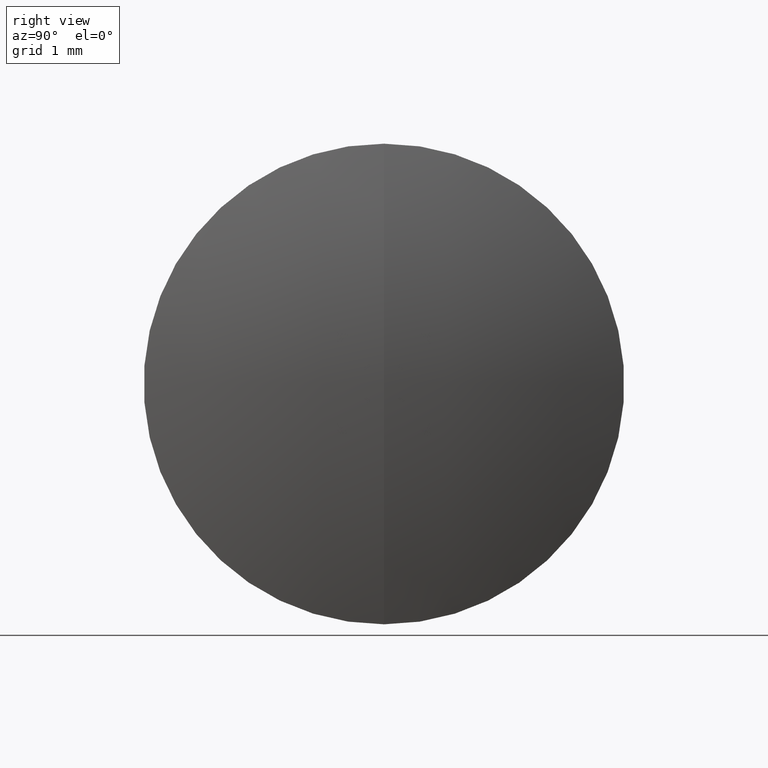
[diagram: clean part render]
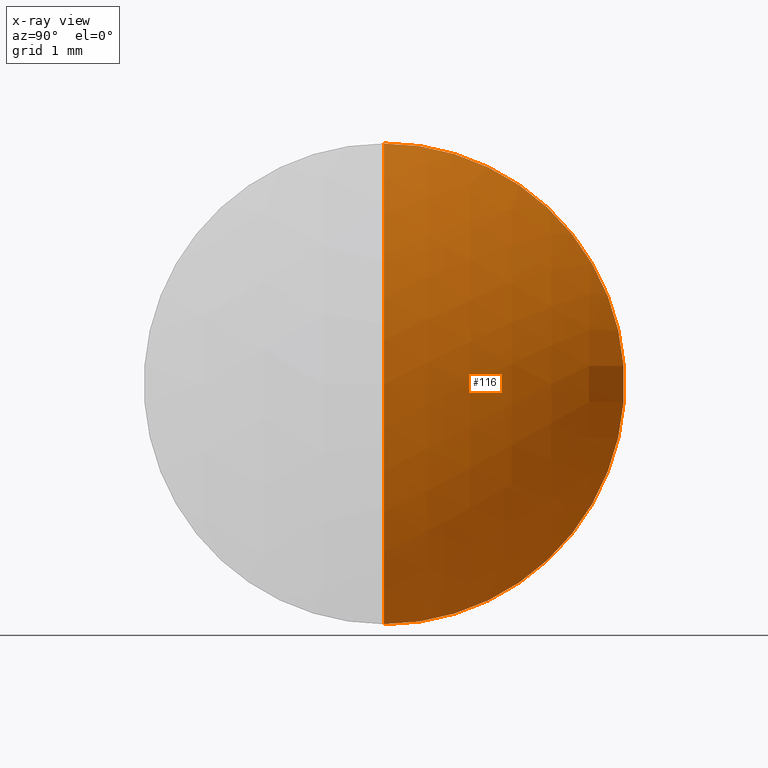
[diagram: x-ray — body ghosted, one internal face saturated and labeled with its STEP entity id]
A machine part, right view, then the same camera in x-ray: the body is ghosted and one INTERNAL B-rep face — a face not visible from any outside direction — is saturated and labeled: STEP entity #116.
In plain terms, the highlighted spherical surface has radius 4.89 mm.
Its self-contained STEP definition (entity closure, byte-faithful):
#32 = CARTESIAN_POINT ( 'NONE',  ( -1.342040515916890000, 0.0000000000000000000, 7.023840951586055500E-017 ) ) ;
#42 = DIRECTION ( 'NONE',  ( -0.0000000000000000000, 1.000000000000000000, 1.224646799147353200E-016 ) ) ;
#46 = DIRECTION ( 'NONE',  ( 0.0000000000000000000, -1.224646799147353200E-016, 1.000000000000000000 ) ) ;
#50 = DIRECTION ( 'NONE',  ( 0.0000000000000000000, 1.000000000000000000, 0.0000000000000000000 ) ) ;
#51 = CIRCLE ( 'NONE', #283, 3.174999999999999800 ) ;
#53 = EDGE_CURVE ( 'NONE', #302, #335, #153, .T. ) ;
#57 = AXIS2_PLACEMENT_3D ( 'NONE', #121, #169, #65 ) ;
#61 = EDGE_LOOP ( 'NONE', ( #232, #157, #106 ) ) ;
#65 = DIRECTION ( 'NONE',  ( 0.0000000000000000000, 0.0000000000000000000, -1.000000000000000000 ) ) ;
#99 = FACE_OUTER_BOUND ( 'NONE', #61, .T. ) ;
#106 = ORIENTED_EDGE ( 'NONE', *, *, #275, .F. ) ;
#109 = CARTESIAN_POINT ( 'NONE',  ( 2.377028588039097600, 0.0000000000000000000, 0.0000000000000000000 ) ) ;
#116 = ADVANCED_FACE ( 'NONE', ( #99 ), #304, .T. ) ;
#121 = CARTESIAN_POINT ( 'NONE',  ( -1.342040515916890000, 0.0000000000000000000, 7.023840951586055500E-017 ) ) ;
#153 = CIRCLE ( 'NONE', #57, 4.889999999999999700 ) ;
#157 = ORIENTED_EDGE ( 'NONE', *, *, #192, .T. ) ;
#158 = AXIS2_PLACEMENT_3D ( 'NONE', #273, #42, #46 ) ;
#169 = DIRECTION ( 'NONE',  ( 0.0000000000000000000, -1.000000000000000000, 0.0000000000000000000 ) ) ;
#192 = EDGE_CURVE ( 'NONE', #302, #312, #217, .T. ) ;
#217 = CIRCLE ( 'NONE', #158, 4.889999999999999700 ) ;
#227 = DIRECTION ( 'NONE',  ( -1.000000000000000000, -0.0000000000000000000, -0.0000000000000000000 ) ) ;
#229 = DIRECTION ( 'NONE',  ( 0.0000000000000000000, 0.0000000000000000000, 1.000000000000000000 ) ) ;
#232 = ORIENTED_EDGE ( 'NONE', *, *, #53, .F. ) ;
#253 = CARTESIAN_POINT ( 'NONE',  ( 2.377028588039097600, 3.888253587292846100E-016, -3.174999999999999800 ) ) ;
#264 = CARTESIAN_POINT ( 'NONE',  ( 2.377028588039097600, 0.0000000000000000000, 3.174999999999999800 ) ) ;
#273 = CARTESIAN_POINT ( 'NONE',  ( -1.342040515916890000, 0.0000000000000000000, 7.023840951586055500E-017 ) ) ;
#275 = EDGE_CURVE ( 'NONE', #335, #312, #51, .T. ) ;
#283 = AXIS2_PLACEMENT_3D ( 'NONE', #109, #227, #285 ) ;
#285 = DIRECTION ( 'NONE',  ( 0.0000000000000000000, 0.0000000000000000000, 1.000000000000000000 ) ) ;
#298 = CARTESIAN_POINT ( 'NONE',  ( 3.547959484083109200, 0.0000000000000000000, 3.696645519073884000E-016 ) ) ;
#302 = VERTEX_POINT ( 'NONE', #298 ) ;
#304 = SPHERICAL_SURFACE ( 'NONE', #318, 4.889999999999999700 ) ;
#312 = VERTEX_POINT ( 'NONE', #253 ) ;
#318 = AXIS2_PLACEMENT_3D ( 'NONE', #32, #50, #229 ) ;
#335 = VERTEX_POINT ( 'NONE', #264 ) ;